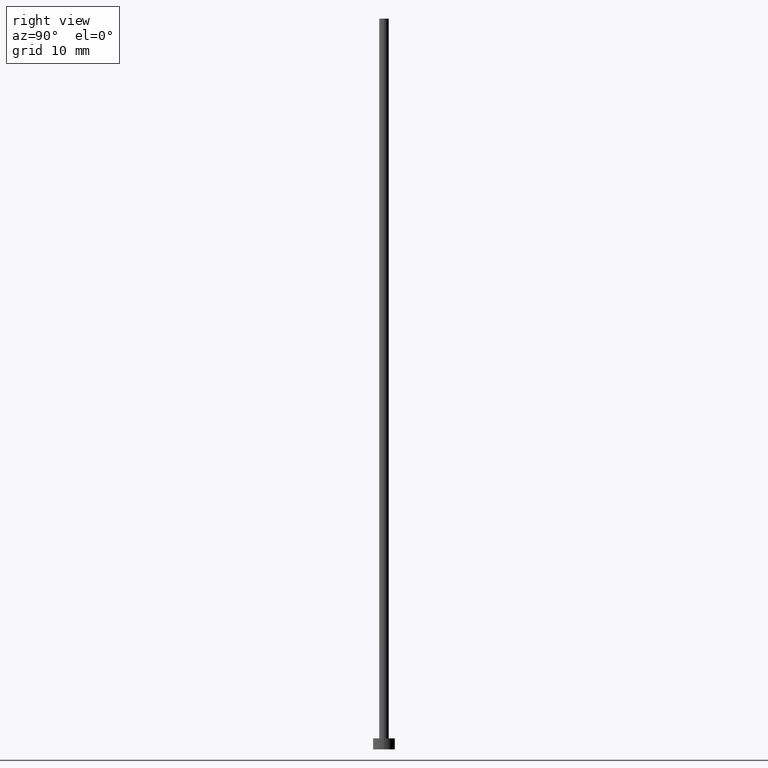
[diagram: clean part render]
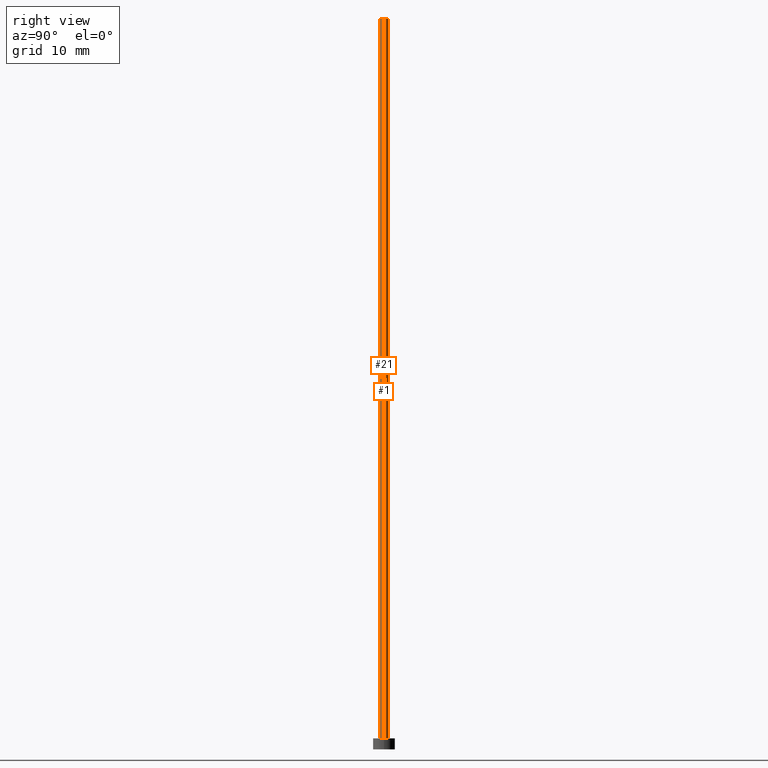
[diagram: same view with one multi-face feature highlighted, each face labeled with its STEP entity id]
A machine part, right view. The highlighted faces form ONE feature: a constant-radius fillet chain: 2 tangent blend faces with common blend radius 0.65 mm. The faces share edges in the B-rep.
Their STEP definitions:
[1] entity #21 (Cylinder):
#6 = CIRCLE ( 'NONE', #157, 0.6500000000000000222 ) ;
#15 = DIRECTION ( 'NONE',  ( -0.000000000000000000, -0.000000000000000000, -1.000000000000000000 ) ) ;
#21 = ADVANCED_FACE ( 'NONE', ( #34 ), #213, .T. ) ;
#32 = ORIENTED_EDGE ( 'NONE', *, *, #254, .T. ) ;
#34 = FACE_OUTER_BOUND ( 'NONE', #180, .T. ) ;
#40 = CARTESIAN_POINT ( 'NONE',  ( 0.000000000000000000, 0.000000000000000000, 100.0000000000000000 ) ) ;
#41 = CARTESIAN_POINT ( 'NONE',  ( 0.000000000000000000, 0.000000000000000000, 100.0000000000000000 ) ) ;
#47 = CIRCLE ( 'NONE', #163, 0.6500000000000000222 ) ;
#52 = VECTOR ( 'NONE', #77, 1000.000000000000000 ) ;
#76 = DIRECTION ( 'NONE',  ( 1.000000000000000000, 0.000000000000000000, 0.000000000000000000 ) ) ;
#77 = DIRECTION ( 'NONE',  ( -0.000000000000000000, -0.000000000000000000, -1.000000000000000000 ) ) ;
#80 = LINE ( 'NONE', #246, #52 ) ;
#89 = VERTEX_POINT ( 'NONE', #249 ) ;
#92 = CARTESIAN_POINT ( 'NONE',  ( -0.6500000000000000222, 0.000000000000000000, 100.0000000000000000 ) ) ;
#97 = CARTESIAN_POINT ( 'NONE',  ( -0.6500000000000000222, 0.000000000000000000, 100.0000000000000000 ) ) ;
#100 = AXIS2_PLACEMENT_3D ( 'NONE', #41, #15, #229 ) ;
#104 = ORIENTED_EDGE ( 'NONE', *, *, #183, .F. ) ;
#117 = CARTESIAN_POINT ( 'NONE',  ( 0.000000000000000000, 0.000000000000000000, 1.500000000000000000 ) ) ;
#121 = EDGE_CURVE ( 'NONE', #244, #89, #128, .T. ) ;
#122 = VERTEX_POINT ( 'NONE', #175 ) ;
#128 = LINE ( 'NONE', #92, #172 ) ;
#146 = CARTESIAN_POINT ( 'NONE',  ( 0.6500000000000000222, 7.960204194457795477E-17, 100.0000000000000000 ) ) ;
#150 = EDGE_CURVE ( 'NONE', #219, #122, #80, .T. ) ;
#157 = AXIS2_PLACEMENT_3D ( 'NONE', #40, #188, #76 ) ;
#163 = AXIS2_PLACEMENT_3D ( 'NONE', #117, #253, #196 ) ;
#164 = ORIENTED_EDGE ( 'NONE', *, *, #150, .F. ) ;
#166 = DIRECTION ( 'NONE',  ( -0.000000000000000000, -0.000000000000000000, -1.000000000000000000 ) ) ;
#172 = VECTOR ( 'NONE', #166, 1000.000000000000000 ) ;
#175 = CARTESIAN_POINT ( 'NONE',  ( 0.6500000000000000222, 7.960204194457795477E-17, 1.500000000000000000 ) ) ;
#180 = EDGE_LOOP ( 'NONE', ( #164, #104, #221, #32 ) ) ;
#183 = EDGE_CURVE ( 'NONE', #244, #219, #6, .T. ) ;
#188 = DIRECTION ( 'NONE',  ( 0.000000000000000000, 0.000000000000000000, 1.000000000000000000 ) ) ;
#196 = DIRECTION ( 'NONE',  ( 1.000000000000000000, 0.000000000000000000, 0.000000000000000000 ) ) ;
#213 = CYLINDRICAL_SURFACE ( 'NONE', #100, 0.6500000000000000222 ) ;
#219 = VERTEX_POINT ( 'NONE', #146 ) ;
#221 = ORIENTED_EDGE ( 'NONE', *, *, #121, .T. ) ;
#229 = DIRECTION ( 'NONE',  ( -1.000000000000000000, 0.000000000000000000, 0.000000000000000000 ) ) ;
#244 = VERTEX_POINT ( 'NONE', #97 ) ;
#246 = CARTESIAN_POINT ( 'NONE',  ( 0.6500000000000000222, 7.960204194457795477E-17, 100.0000000000000000 ) ) ;
#249 = CARTESIAN_POINT ( 'NONE',  ( -0.6500000000000000222, 0.000000000000000000, 1.500000000000000000 ) ) ;
#253 = DIRECTION ( 'NONE',  ( 0.000000000000000000, 0.000000000000000000, 1.000000000000000000 ) ) ;
#254 = EDGE_CURVE ( 'NONE', #89, #122, #47, .T. ) ;
[2] entity #1 (Cylinder):
#1 = ADVANCED_FACE ( 'NONE', ( #162 ), #124, .T. ) ;
#5 = ORIENTED_EDGE ( 'NONE', *, *, #150, .T. ) ;
#10 = EDGE_CURVE ( 'NONE', #122, #89, #102, .T. ) ;
#13 = CIRCLE ( 'NONE', #63, 0.6500000000000000222 ) ;
#14 = CARTESIAN_POINT ( 'NONE',  ( 0.000000000000000000, 0.000000000000000000, 100.0000000000000000 ) ) ;
#51 = ORIENTED_EDGE ( 'NONE', *, *, #10, .T. ) ;
#52 = VECTOR ( 'NONE', #77, 1000.000000000000000 ) ;
#63 = AXIS2_PLACEMENT_3D ( 'NONE', #14, #93, #96 ) ;
#70 = ORIENTED_EDGE ( 'NONE', *, *, #216, .F. ) ;
#77 = DIRECTION ( 'NONE',  ( -0.000000000000000000, -0.000000000000000000, -1.000000000000000000 ) ) ;
#80 = LINE ( 'NONE', #246, #52 ) ;
#86 = CARTESIAN_POINT ( 'NONE',  ( 0.000000000000000000, 0.000000000000000000, 100.0000000000000000 ) ) ;
#89 = VERTEX_POINT ( 'NONE', #249 ) ;
#92 = CARTESIAN_POINT ( 'NONE',  ( -0.6500000000000000222, 0.000000000000000000, 100.0000000000000000 ) ) ;
#93 = DIRECTION ( 'NONE',  ( 0.000000000000000000, 0.000000000000000000, 1.000000000000000000 ) ) ;
#96 = DIRECTION ( 'NONE',  ( 1.000000000000000000, 0.000000000000000000, 0.000000000000000000 ) ) ;
#97 = CARTESIAN_POINT ( 'NONE',  ( -0.6500000000000000222, 0.000000000000000000, 100.0000000000000000 ) ) ;
#102 = CIRCLE ( 'NONE', #252, 0.6500000000000000222 ) ;
#121 = EDGE_CURVE ( 'NONE', #244, #89, #128, .T. ) ;
#122 = VERTEX_POINT ( 'NONE', #175 ) ;
#124 = CYLINDRICAL_SURFACE ( 'NONE', #215, 0.6500000000000000222 ) ;
#128 = LINE ( 'NONE', #92, #172 ) ;
#145 = DIRECTION ( 'NONE',  ( -1.000000000000000000, 0.000000000000000000, 0.000000000000000000 ) ) ;
#146 = CARTESIAN_POINT ( 'NONE',  ( 0.6500000000000000222, 7.960204194457795477E-17, 100.0000000000000000 ) ) ;
#150 = EDGE_CURVE ( 'NONE', #219, #122, #80, .T. ) ;
#158 = DIRECTION ( 'NONE',  ( 0.000000000000000000, 0.000000000000000000, 1.000000000000000000 ) ) ;
#162 = FACE_OUTER_BOUND ( 'NONE', #224, .T. ) ;
#166 = DIRECTION ( 'NONE',  ( -0.000000000000000000, -0.000000000000000000, -1.000000000000000000 ) ) ;
#172 = VECTOR ( 'NONE', #166, 1000.000000000000000 ) ;
#175 = CARTESIAN_POINT ( 'NONE',  ( 0.6500000000000000222, 7.960204194457795477E-17, 1.500000000000000000 ) ) ;
#201 = DIRECTION ( 'NONE',  ( -0.000000000000000000, -0.000000000000000000, -1.000000000000000000 ) ) ;
#205 = DIRECTION ( 'NONE',  ( 1.000000000000000000, 0.000000000000000000, 0.000000000000000000 ) ) ;
#215 = AXIS2_PLACEMENT_3D ( 'NONE', #86, #201, #145 ) ;
#216 = EDGE_CURVE ( 'NONE', #219, #244, #13, .T. ) ;
#219 = VERTEX_POINT ( 'NONE', #146 ) ;
#223 = ORIENTED_EDGE ( 'NONE', *, *, #121, .F. ) ;
#224 = EDGE_LOOP ( 'NONE', ( #70, #5, #51, #223 ) ) ;
#226 = CARTESIAN_POINT ( 'NONE',  ( 0.000000000000000000, 0.000000000000000000, 1.500000000000000000 ) ) ;
#244 = VERTEX_POINT ( 'NONE', #97 ) ;
#246 = CARTESIAN_POINT ( 'NONE',  ( 0.6500000000000000222, 7.960204194457795477E-17, 100.0000000000000000 ) ) ;
#249 = CARTESIAN_POINT ( 'NONE',  ( -0.6500000000000000222, 0.000000000000000000, 1.500000000000000000 ) ) ;
#252 = AXIS2_PLACEMENT_3D ( 'NONE', #226, #158, #205 ) ;